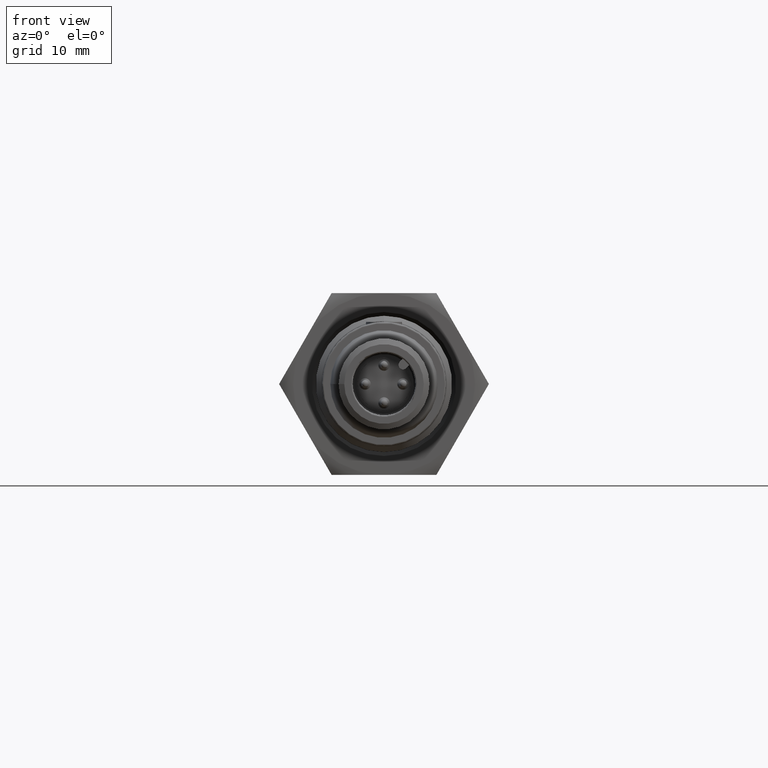
[diagram: clean part render]
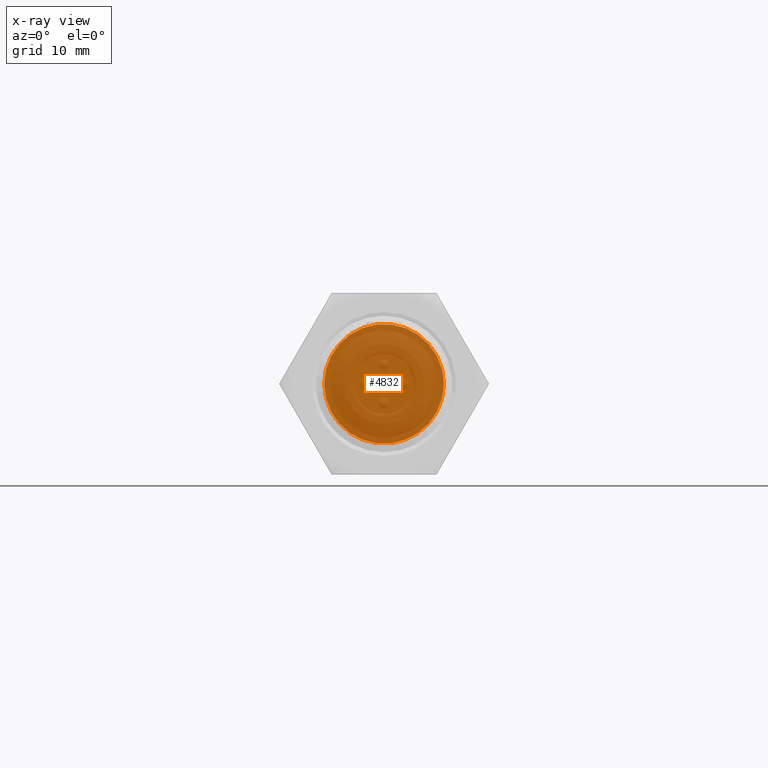
[diagram: x-ray — body ghosted, one internal face saturated and labeled with its STEP entity id]
A machine part, front view, then the same camera in x-ray: the body is ghosted and one INTERNAL B-rep face — a face not visible from any outside direction — is saturated and labeled: STEP entity #4832.
In plain terms, the highlighted planar face has unit normal (-0, -1, -0).
Its self-contained STEP definition (entity closure, byte-faithful):
#156 = FACE_OUTER_BOUND ( 'NONE', #2367, .T. ) ;
#288 = AXIS2_PLACEMENT_3D ( 'NONE', #829, #2535, #3745 ) ;
#595 = DIRECTION ( 'NONE',  ( -1.021860547567589901E-16, -1.000000000000000000, -1.021860547567589979E-31 ) ) ;
#623 = DIRECTION ( 'NONE',  ( -1.000000000000000000, 1.021860547567589901E-16, 0.000000000000000000 ) ) ;
#629 = CARTESIAN_POINT ( 'NONE',  ( 0.3110236220472444302, 1.323504529206566804, 3.110236220472444378E-16 ) ) ;
#829 = CARTESIAN_POINT ( 'NONE',  ( 2.820355600146495457E-16, 1.323504529206566804, 2.820355600146496573E-31 ) ) ;
#1164 = CIRCLE ( 'NONE', #288, 0.3110236220472441526 ) ;
#1624 = ORIENTED_EDGE ( 'NONE', *, *, #1799, .F. ) ;
#1799 = EDGE_CURVE ( 'NONE', #4861, #4861, #1164, .T. ) ;
#2276 = PLANE ( 'NONE',  #3768 ) ;
#2367 = EDGE_LOOP ( 'NONE', ( #1624 ) ) ;
#2535 = DIRECTION ( 'NONE',  ( -2.189528850507525116E-62, 1.000000000000000000, 2.189528850507524972E-47 ) ) ;
#3745 = DIRECTION ( 'NONE',  ( 1.000000000000000000, 0.000000000000000000, 9.999999999999998805E-16 ) ) ;
#3768 = AXIS2_PLACEMENT_3D ( 'NONE', #4854, #595, #623 ) ;
#4832 = ADVANCED_FACE ( 'NONE', ( #156 ), #2276, .T. ) ;
#4854 = CARTESIAN_POINT ( 'NONE',  ( 0.3110236220472441526, 1.323504529206566804, 3.110236220472440926E-16 ) ) ;
#4861 = VERTEX_POINT ( 'NONE', #629 ) ;